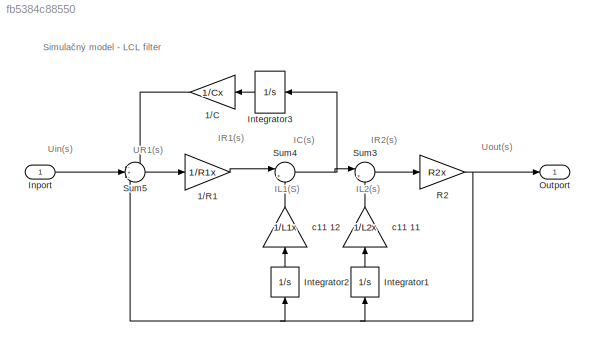
MODEL slx_fb5384c88550
KIND model
CONFIG AbsTol = auto
CONFIG EnableMultiTasking = off
CONFIG FixedStep = auto
CONFIG MaxStep = auto
CONFIG MinStep = auto
CONFIG RelTol = 1e-3
CONFIG SampleTimeConstraint = Unconstrained
CONFIG SolverName = VariableStepAuto
CONFIG StartTime = 0.0
CONFIG StopTime = Tsim
WORKSPACE source: mxarray member
WORKSPACE C: object (value not decoded)
WORKSPACE Cx = 3
WORKSPACE F: object (value not decoded)
WORKSPACE I2: object (value not decoded)
WORKSPACE L1: object (value not decoded)
WORKSPACE L1x = 0.01
WORKSPACE L2: object (value not decoded)
WORKSPACE L2x = 0.01
WORKSPACE R1: object (value not decoded)
WORKSPACE R1x = 50
WORKSPACE R2: object (value not decoded)
WORKSPACE R2x = 20
WORKSPACE Tchirp = 0.04
WORKSPACE Tsim = 0.05
WORKSPACE Tstep = 0.02
WORKSPACE U: object (value not decoded)
WORKSPACE UR2: object (value not decoded)
WORKSPACE Ux = 10
WORKSPACE Z: object (value not decoded)
WORKSPACE ZI3: object (value not decoded)
WORKSPACE a = [-3e-06 -0.009 60 0.2 1000]
WORKSPACE b = [0.006 0 0 0]
WORKSPACE cit: object (value not decoded)
WORKSPACE color = 'r'
WORKSPACE men: object (value not decoded)
WORKSPACE s: object (value not decoded)
WORKSPACE sim = 'HPF'
WORKSPACE u: object (value not decoded)
WORKSPACE wmax = 100000
WORKSPACE wmaxchirp = 1000
WORKSPACE wmin = 10
WORKSPACE wminchirp = 10
BLOCK [Gain] 1//C
  Gain = 1/Cx
  NameLocation = top
BLOCK [Gain] 1//R1
  Gain = 1/R1x
BLOCK [Inport] Inport
BLOCK [Integrator] Integrator1
  NameLocation = left
  Ports = [1, 1]
BLOCK [Integrator] Integrator2
  NameLocation = left
  Ports = [1, 1]
BLOCK [Integrator] Integrator3
  Ports = [1, 1]
BLOCK [Outport] Outport
BLOCK [Gain] R2
  Gain = R2x
BLOCK [Sum] Sum3
  Inputs = |+-
  LockScale = on
  Ports = [2, 1]
BLOCK [Sum] Sum4
  Inputs = |+-
  Ports = [2, 1]
BLOCK [Sum] Sum5
  Inputs = -+-
  Ports = [3, 1]
BLOCK [Gain] c11 11
  Gain = 1/L2x
  NameLocation = right
BLOCK [Gain] c11 12
  Gain = 1/L1x
  NameLocation = right
ANNOTATION (root): I C (s)
ANNOTATION (root): I L1 (S)
ANNOTATION (root): I L2 (s)
ANNOTATION (root): I R1 (s)
ANNOTATION (root): I R2 (s)
ANNOTATION (root): U R1 (s)
ANNOTATION (root): U in (s)
ANNOTATION (root): U out (s)
ANNOTATION (root): Simulačný model - LCL filter
LINE 1//C:1 -> Sum5:1
LINE 1//R1:1 -> Sum4:1
LINE Inport:1 -> Sum5:2
LINE Integrator1:1 -> c11 11:1
LINE Integrator2:1 -> c11 12:1
LINE Integrator3:1 -> 1//C:1
NET R2:1 -> Integrator1:1, Integrator2:1, Outport:1, Sum5:3
LINE Sum3:1 -> R2:1
NET Sum4:1 -> Integrator3:1, Sum3:1
LINE Sum5:1 -> 1//R1:1
LINE c11 11:1 -> Sum3:2
LINE c11 12:1 -> Sum4:2
note: NET lines group one-source signal fan-out (src -> all destinations, sorted); 1:1 wires keep LINE
